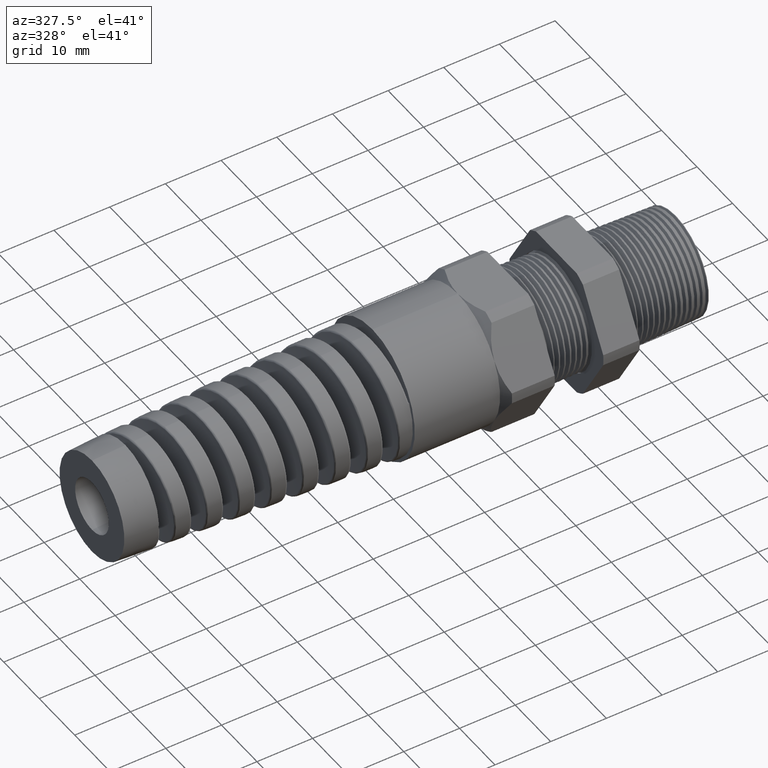
[diagram: clean part render]
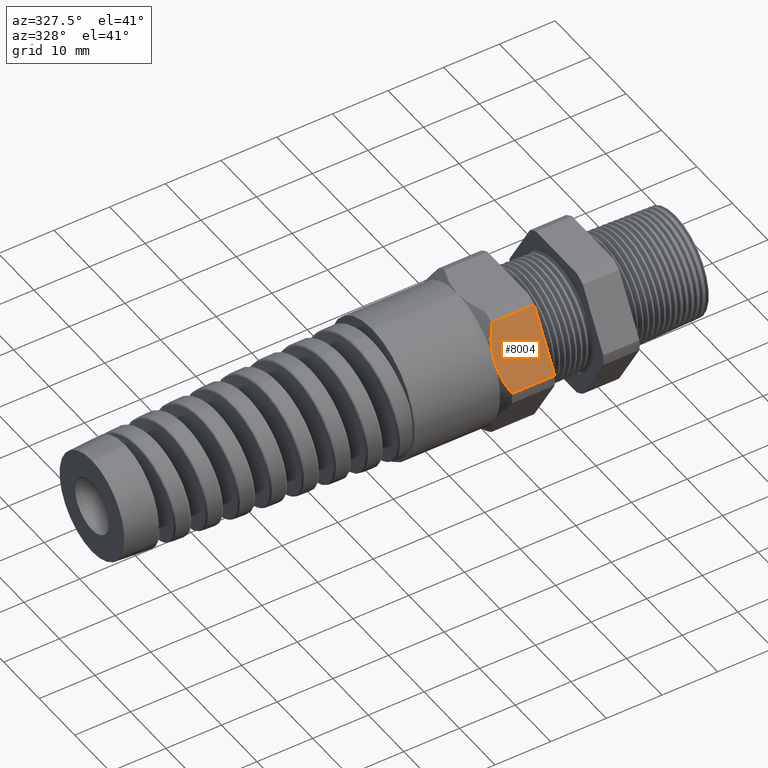
[diagram: same view with one face highlighted and labeled with its STEP entity id]
A machine part, auxiliary view. The second image highlights one B-rep face of the part: STEP entity #8004.
In plain terms, the highlighted planar face has unit normal (0, -0.866, 0.5).
Its self-contained STEP definition (entity closure, byte-faithful):
#2183 = CARTESIAN_POINT ( 'NONE',  ( -1.212000787401574600, -0.5202473208008777700, 0.03890520787129464500 ) ) ;
#2184 = CARTESIAN_POINT ( 'NONE',  ( -1.227654196895982400, -0.5022144712456755300, 0.07013901950615103500 ) ) ;
#2609 = CARTESIAN_POINT ( 'NONE',  ( -1.212000787401574600, -0.2938165587564947100, 0.4310947921287050500 ) ) ;
#2610 = CARTESIAN_POINT ( 'NONE',  ( -1.263700787401574700, -0.4070319397786862900, 0.2349999999999999300 ) ) ;
#2611 = CARTESIAN_POINT ( 'NONE',  ( -0.9093700787401572900, -0.2938165587564947100, 0.4310947921287050500 ) ) ;
#2652 = DIRECTION ( 'NONE',  ( 0.0000000000000000000, -0.4999999999999997200, -0.8660254037844388200 ) ) ;
#2653 = DIRECTION ( 'NONE',  ( 0.0000000000000000000, -0.8660254037844388200, 0.4999999999999997200 ) ) ;
#2654 = CARTESIAN_POINT ( 'NONE',  ( 0.2800000000000000300, -0.5202473208008777700, 0.03890520787129483900 ) ) ;
#2655 = AXIS2_PLACEMENT_3D ( 'NONE', #2654, #2653, #2652 ) ;
#2656 = PLANE ( 'NONE',  #2655 ) ;
#2657 = FACE_OUTER_BOUND ( 'NONE', #7948, .T. ) ;
#2710 = DIRECTION ( 'NONE',  ( -1.000000000000000000, 0.0000000000000000000, 0.0000000000000000000 ) ) ;
#2711 = VECTOR ( 'NONE', #2710, 39.37007874015748100 ) ;
#2712 = CARTESIAN_POINT ( 'NONE',  ( 0.2800000000000000300, -0.2938165587564947100, 0.4310947921287050500 ) ) ;
#2713 = LINE ( 'NONE', #2712, #2711 ) ;
#2718 = CARTESIAN_POINT ( 'NONE',  ( -1.240759070462157800, -0.4835762490957484200, 0.1024213672325804000 ) ) ;
#2719 = CARTESIAN_POINT ( 'NONE',  ( -1.258755119221330400, -0.4458197490082083700, 0.1678175437001784800 ) ) ;
#2720 = CARTESIAN_POINT ( 'NONE',  ( -1.263700787401574700, -0.4266212606411439200, 0.2010703009804539500 ) ) ;
#2721 = CARTESIAN_POINT ( 'NONE',  ( -1.263700787401574700, -0.4070319397786862900, 0.2349999999999999300 ) ) ;
#2727 = B_SPLINE_CURVE_WITH_KNOTS ( 'NONE', 3,
 ( #2721, #2720, #2719, #2718, #2184, #2183 ),
 .UNSPECIFIED., .F., .F.,
 ( 4, 2, 4 ),
 ( 0.005903107334592318600, 0.008852512982428784000, 0.01180191863026525100 ),
 .UNSPECIFIED. ) ;
#2729 = CARTESIAN_POINT ( 'NONE',  ( -1.212000787401574600, -0.5202473208008777700, 0.03890520787129464500 ) ) ;
#2730 = DIRECTION ( 'NONE',  ( -1.000000000000000000, 0.0000000000000000000, 0.0000000000000000000 ) ) ;
#2731 = VECTOR ( 'NONE', #2730, 39.37007874015748100 ) ;
#2732 = CARTESIAN_POINT ( 'NONE',  ( 0.2800000000000000300, -0.5202473208008777700, 0.03890520787129464500 ) ) ;
#2733 = LINE ( 'NONE', #2732, #2731 ) ;
#2734 = CARTESIAN_POINT ( 'NONE',  ( -0.9093700787401572900, -0.5202473208008777700, 0.03890520787129464500 ) ) ;
#2735 = DIRECTION ( 'NONE',  ( 0.0000000000000000000, -0.4999999999999997200, -0.8660254037844388200 ) ) ;
#2736 = VECTOR ( 'NONE', #2735, 39.37007874015748100 ) ;
#2737 = CARTESIAN_POINT ( 'NONE',  ( -0.9093700787401572900, -0.3082819397786865100, 0.4060400172474265000 ) ) ;
#2738 = LINE ( 'NONE', #2737, #2736 ) ;
#2761 = CARTESIAN_POINT ( 'NONE',  ( -1.263700787401574700, -0.4070319397786862900, 0.2349999999999999300 ) ) ;
#2762 = CARTESIAN_POINT ( 'NONE',  ( -1.263700787401575100, -0.4021312490570418400, 0.2434882453220695900 ) ) ;
#2763 = CARTESIAN_POINT ( 'NONE',  ( -1.263390652723889800, -0.3971857355050538200, 0.2520541260636331400 ) ) ;
#2764 = CARTESIAN_POINT ( 'NONE',  ( -1.262158857016450400, -0.3873598765596235600, 0.2690730129851233700 ) ) ;
#2765 = CARTESIAN_POINT ( 'NONE',  ( -1.261241224626671300, -0.3824845463488699700, 0.2775173326138240500 ) ) ;
#2766 = CARTESIAN_POINT ( 'NONE',  ( -1.257637759355490800, -0.3679645453500629500, 0.3026667120697089700 ) ) ;
#2767 = CARTESIAN_POINT ( 'NONE',  ( -1.254101093296777300, -0.3584258972266239900, 0.3191881352550267100 ) ) ;
#2768 = CARTESIAN_POINT ( 'NONE',  ( -1.240557452884053500, -0.3301755151959551200, 0.3681192322653760200 ) ) ;
#2769 = CARTESIAN_POINT ( 'NONE',  ( -1.227634833077310800, -0.3118271010418954300, 0.3998996178185234600 ) ) ;
#2770 = CARTESIAN_POINT ( 'NONE',  ( -1.212000787401574600, -0.2938165587564947100, 0.4310947921287050500 ) ) ;
#2771 = B_SPLINE_CURVE_WITH_KNOTS ( 'NONE', 3,
 ( #2770, #2769, #2768, #2767, #2766, #2765, #2764, #2763, #2762, #2761 ),
 .UNSPECIFIED., .F., .F.,
 ( 4, 2, 2, 2, 4 ),
 ( 2.483251536686118000E-007, 0.002951677829872997400, 0.004427392582232660100, 0.005165249958412490200, 0.005903107334592318600 ),
 .UNSPECIFIED. ) ;
#7948 = EDGE_LOOP ( 'NONE', ( #7960, #8034, #8028, #8026, #8022 ) ) ;
#7959 = VERTEX_POINT ( 'NONE', #2611 ) ;
#7960 = ORIENTED_EDGE ( 'NONE', *, *, #8006, .T. ) ;
#7969 = VERTEX_POINT ( 'NONE', #2610 ) ;
#7970 = VERTEX_POINT ( 'NONE', #2609 ) ;
#8004 = ADVANCED_FACE ( 'NONE', ( #2657 ), #2656, .T. ) ;
#8006 = EDGE_CURVE ( 'NONE', #7959, #7970, #2713, .T. ) ;
#8021 = EDGE_CURVE ( 'NONE', #7959, #8023, #2738, .T. ) ;
#8022 = ORIENTED_EDGE ( 'NONE', *, *, #8021, .F. ) ;
#8023 = VERTEX_POINT ( 'NONE', #2734 ) ;
#8024 = EDGE_CURVE ( 'NONE', #8023, #8025, #2733, .T. ) ;
#8025 = VERTEX_POINT ( 'NONE', #2729 ) ;
#8026 = ORIENTED_EDGE ( 'NONE', *, *, #8024, .F. ) ;
#8027 = EDGE_CURVE ( 'NONE', #7969, #8025, #2727, .T. ) ;
#8028 = ORIENTED_EDGE ( 'NONE', *, *, #8027, .T. ) ;
#8034 = ORIENTED_EDGE ( 'NONE', *, *, #8035, .T. ) ;
#8035 = EDGE_CURVE ( 'NONE', #7970, #7969, #2771, .T. ) ;